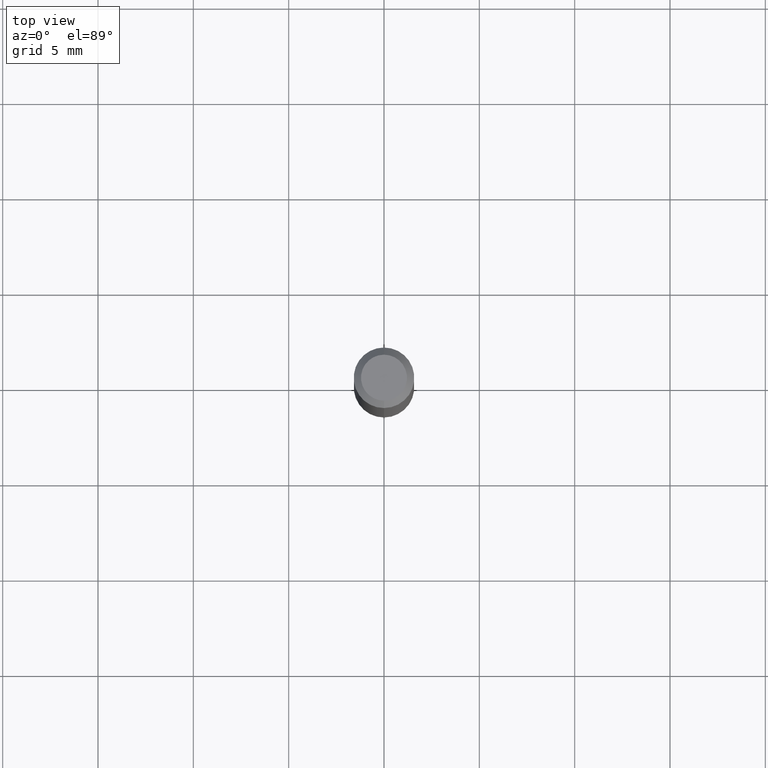
[diagram: clean part render]
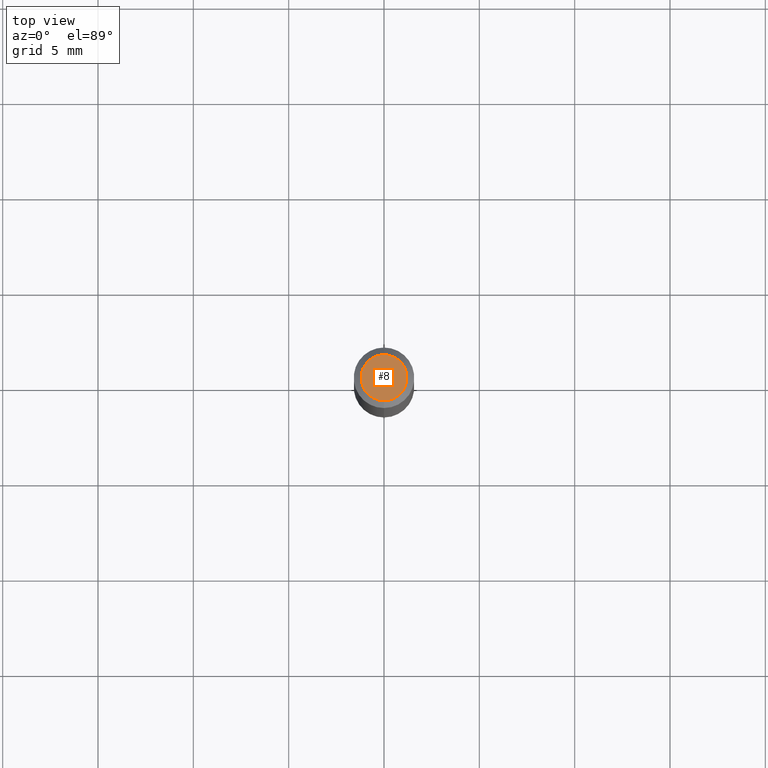
[diagram: same view with one face highlighted and labeled with its STEP entity id]
A machine part, top view. The second image highlights one B-rep face of the part: STEP entity #8.
In plain terms, the highlighted planar face has unit normal (0, -0, -1).
Its self-contained STEP definition (entity closure, byte-faithful):
#2 = VERTEX_POINT ( 'NONE', #331 ) ;
#4 = DIRECTION ( 'NONE',  ( -2.445578334299165369E-29, 3.491324488349903437E-15, 1.000000000000000000 ) ) ;
#8 = ADVANCED_FACE ( 'NONE', ( #333 ), #257, .F. ) ;
#16 = DIRECTION ( 'NONE',  ( 6.982962677686265922E-15, 1.000000000000000000, -3.491324488349903437E-15 ) ) ;
#66 = AXIS2_PLACEMENT_3D ( 'NONE', #252, #334, #16 ) ;
#78 = ORIENTED_EDGE ( 'NONE', *, *, #297, .T. ) ;
#84 = ORIENTED_EDGE ( 'NONE', *, *, #295, .T. ) ;
#135 = DIRECTION ( 'NONE',  ( -2.445578334299165369E-29, 3.491324488349903437E-15, 1.000000000000000000 ) ) ;
#157 = DIRECTION ( 'NONE',  ( -6.982962677686266711E-15, -1.000000000000000000, 3.491324488349903437E-15 ) ) ;
#175 = VERTEX_POINT ( 'NONE', #224 ) ;
#203 = AXIS2_PLACEMENT_3D ( 'NONE', #338, #135, #298 ) ;
#224 = CARTESIAN_POINT ( 'NONE',  ( 3.840629472727447874E-16, 0.04749999999999999362, -4.939923113072091241E-16 ) ) ;
#252 = CARTESIAN_POINT ( 'NONE',  ( 3.316907271900976096E-16, 0.04749999999999999362, -3.299151122519147203E-16 ) ) ;
#257 = PLANE ( 'NONE',  #66 ) ;
#295 = EDGE_CURVE ( 'NONE', #2, #175, #455, .T. ) ;
#297 = EDGE_CURVE ( 'NONE', #175, #2, #494, .T. ) ;
#298 = DIRECTION ( 'NONE',  ( -6.982962677686266711E-15, -1.000000000000000000, 3.491324488349903437E-15 ) ) ;
#331 = CARTESIAN_POINT ( 'NONE',  ( -3.773273898774340269E-16, -0.04749999999999999362, -1.623164849139683183E-16 ) ) ;
#333 = FACE_OUTER_BOUND ( 'NONE', #428, .T. ) ;
#334 = DIRECTION ( 'NONE',  ( 2.445578334299164808E-29, -3.491324488349903437E-15, -1.000000000000000000 ) ) ;
#338 = CARTESIAN_POINT ( 'NONE',  ( 8.025272863242386693E-45, -1.145693486083221575E-30, -3.281543981105887088E-16 ) ) ;
#428 = EDGE_LOOP ( 'NONE', ( #78, #84 ) ) ;
#437 = CARTESIAN_POINT ( 'NONE',  ( 8.025272863242386693E-45, -1.145693486083221575E-30, -3.281543981105887088E-16 ) ) ;
#455 = CIRCLE ( 'NONE', #203, 0.04749999999999999362 ) ;
#461 = AXIS2_PLACEMENT_3D ( 'NONE', #437, #4, #157 ) ;
#494 = CIRCLE ( 'NONE', #461, 0.04749999999999999362 ) ;